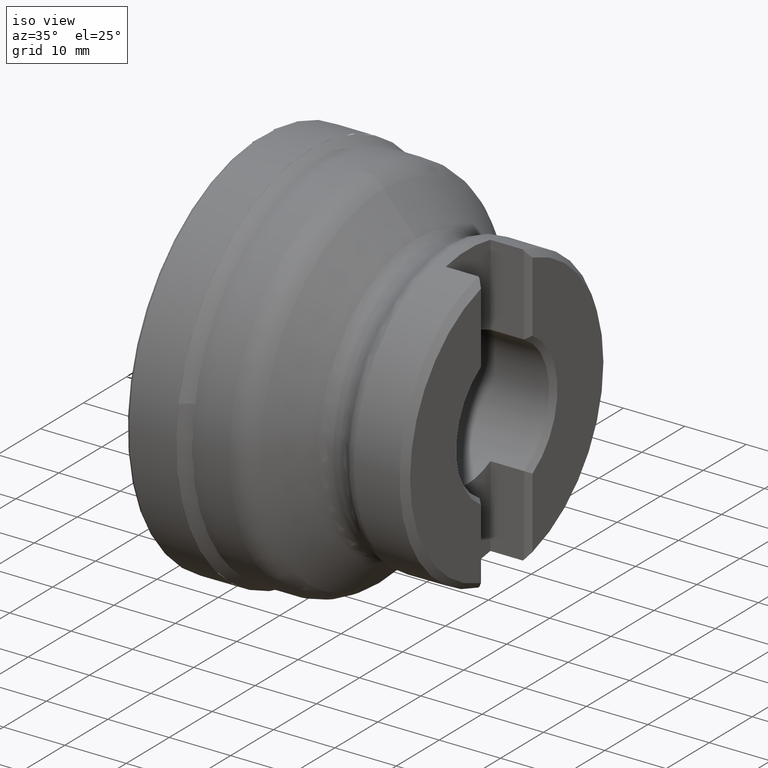
[diagram: clean part render]
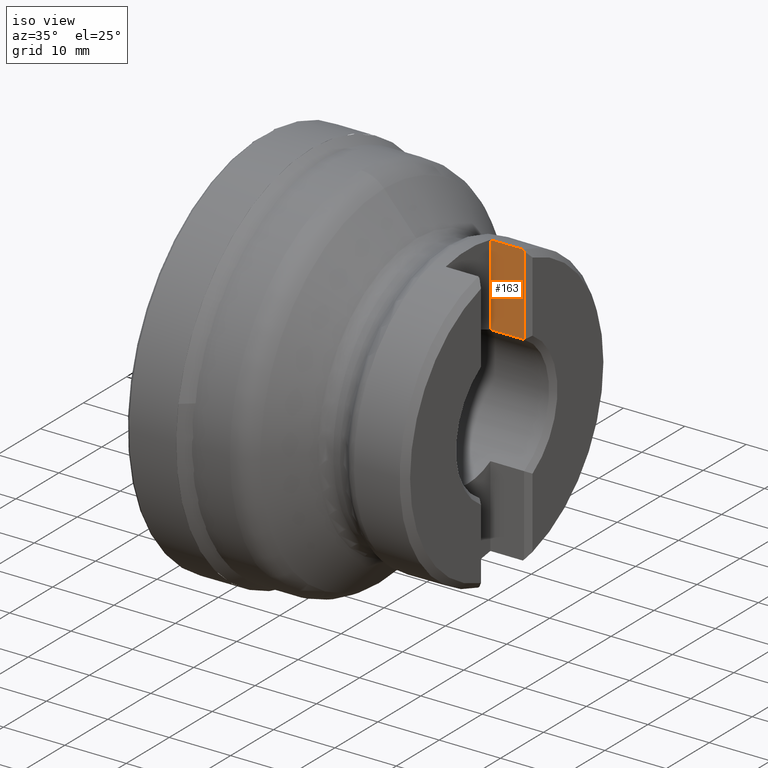
[diagram: same view with one face highlighted and labeled with its STEP entity id]
A machine part, iso view. The second image highlights one B-rep face of the part: STEP entity #163.
In plain terms, the highlighted planar face has unit normal (0, 1, 0).
Its self-contained STEP definition (entity closure, byte-faithful):
#55=PLANE('',#923);
#69=FACE_OUTER_BOUND('',#439,.T.);
#105=B_SPLINE_CURVE_WITH_KNOTS('',3,(#1299,#1300,#1301,#1302),.UNSPECIFIED.,
 .F.,.F.,(4,4),(0.,1.),.UNSPECIFIED.);
#163=ADVANCED_FACE('',(#69),#55,.F.);
#228=LINE('',#1339,#256);
#234=LINE('',#1392,#262);
#240=LINE('',#1444,#268);
#241=LINE('',#1446,#269);
#256=VECTOR('',#1045,1.);
#262=VECTOR('',#1103,1.);
#268=VECTOR('',#1149,1.);
#269=VECTOR('',#1152,1.);
#439=EDGE_LOOP('',(#583,#584,#585,#586,#587));
#583=ORIENTED_EDGE('',*,*,#755,.T.);
#584=ORIENTED_EDGE('',*,*,#774,.T.);
#585=ORIENTED_EDGE('',*,*,#720,.T.);
#586=ORIENTED_EDGE('',*,*,#733,.F.);
#587=ORIENTED_EDGE('',*,*,#773,.F.);
#650=VERTEX_POINT('',#1303);
#651=VERTEX_POINT('',#1304);
#662=VERTEX_POINT('',#1338);
#683=VERTEX_POINT('',#1391);
#684=VERTEX_POINT('',#1393);
#720=EDGE_CURVE('',#650,#651,#105,.T.);
#733=EDGE_CURVE('',#662,#651,#228,.T.);
#755=EDGE_CURVE('',#684,#683,#234,.T.);
#773=EDGE_CURVE('',#684,#662,#240,.T.);
#774=EDGE_CURVE('',#683,#650,#241,.T.);
#923=AXIS2_PLACEMENT_3D('',#1447,#1153,#1154);
#1045=DIRECTION('',(1.,0.,0.));
#1103=DIRECTION('',(1.,0.,0.));
#1149=DIRECTION('',(0.,0.,1.));
#1152=DIRECTION('',(0.,0.,1.));
#1153=DIRECTION('',(0.,1.,0.));
#1154=DIRECTION('',(0.,0.,1.));
#1299=CARTESIAN_POINT('',(39.1999999999948,5.2,22.7123314523244));
#1300=CARTESIAN_POINT('',(39.1333409207573,5.2,22.780715296999));
#1301=CARTESIAN_POINT('',(39.0666741878833,5.2,22.8490916118557));
#1302=CARTESIAN_POINT('',(39.,5.2,22.9174605923082));
#1303=CARTESIAN_POINT('',(39.1999999999948,5.2,22.7123314523244));
#1304=CARTESIAN_POINT('',(39.,5.2,22.9174605923082));
#1338=CARTESIAN_POINT('',(33.7,5.2,22.9174605923082));
#1339=CARTESIAN_POINT('',(0.,5.2,22.9174605923082));
#1391=CARTESIAN_POINT('',(39.2,5.2,9.69329665284211));
#1392=CARTESIAN_POINT('',(0.,5.2,9.69329665284211));
#1393=CARTESIAN_POINT('',(33.7,5.2,9.69329665284211));
#1444=CARTESIAN_POINT('',(33.7,5.2,-250.));
#1446=CARTESIAN_POINT('',(39.2,5.2,-250.));
#1447=CARTESIAN_POINT('',(40.,5.2,-250.));